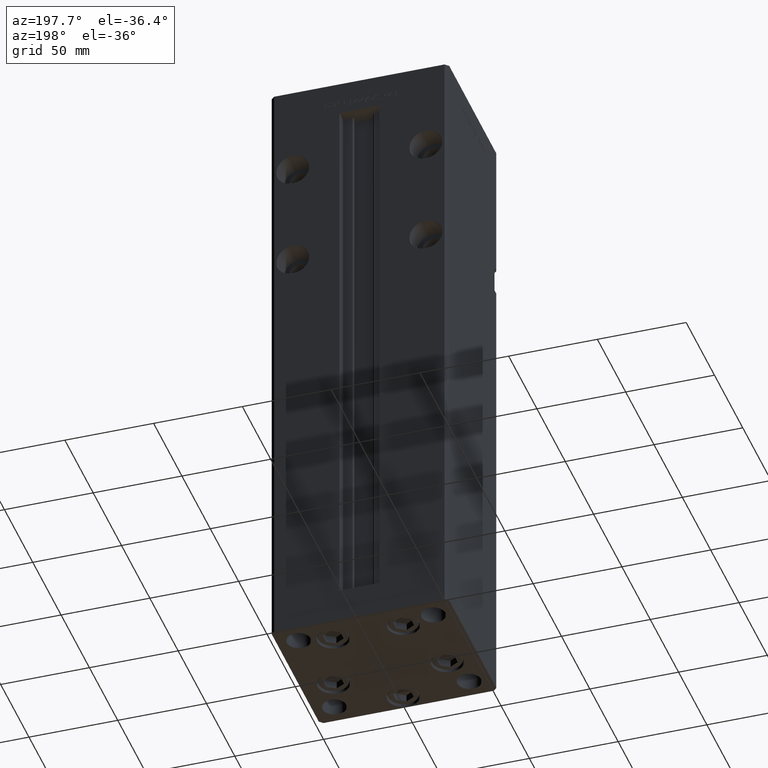
[diagram: clean part render]
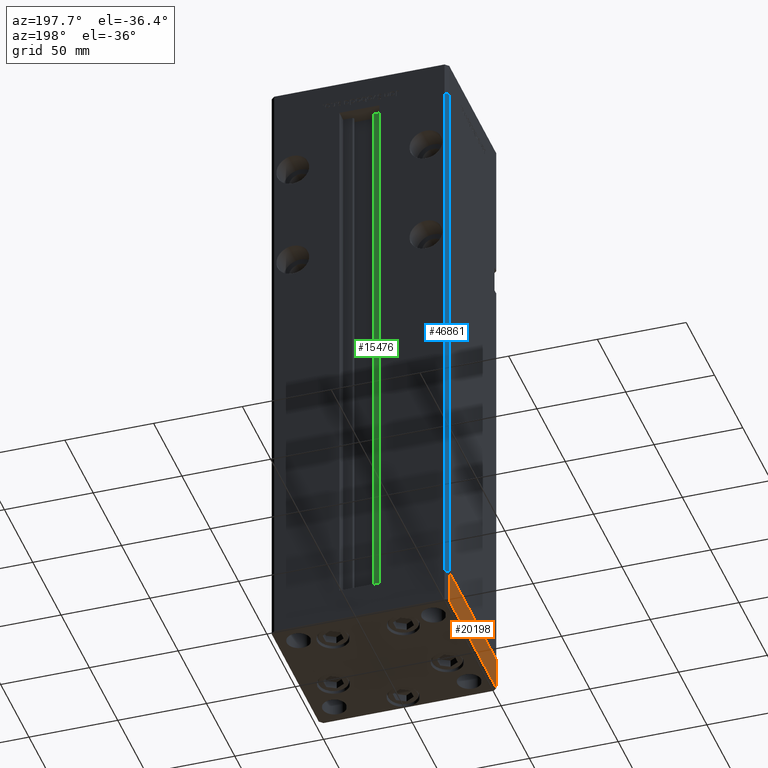
[diagram: same view with three faces highlighted in distinct colors, each labeled with its STEP entity id]
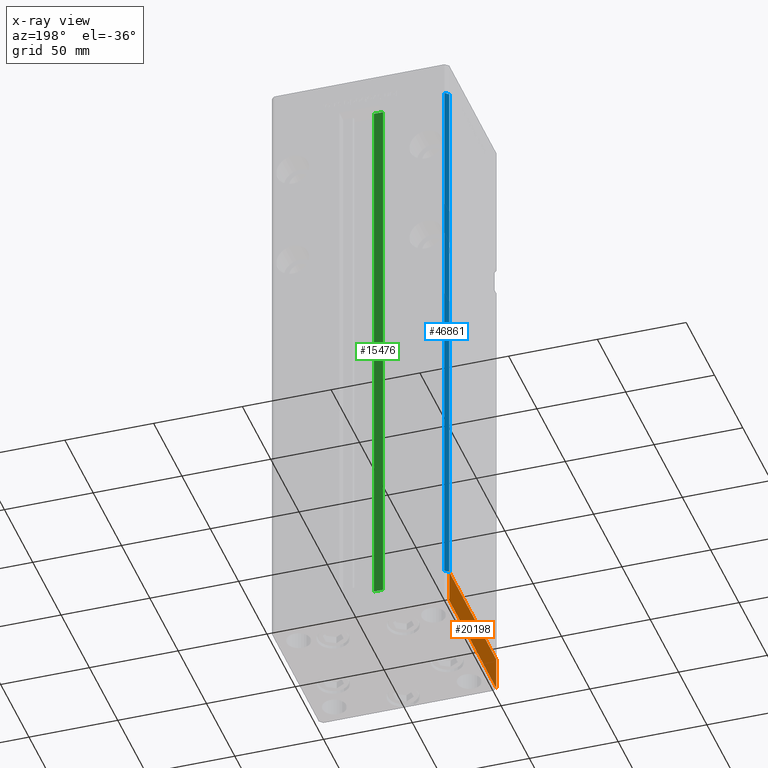
[diagram: x-ray of the same camera — body ghosted, the three highlighted faces saturated]
A machine part, auxiliary view with three faces highlighted in distinct colors.
The next image is the same camera in x-ray (body ghosted, the three faces saturated) — at least one of them is partly hidden behind the body in this view.
Their STEP definitions:

[orange] entity #20198 — the highlighted planar face has unit normal (-1, -0, 0).
#145 = EDGE_CURVE ( 'NONE', #15688, #26619, #16801, .T. ) ;
#3100 = DIRECTION ( 'NONE',  ( 0.000000000000000000, 0.000000000000000000, 1.000000000000000000 ) ) ;
#4010 = ORIENTED_EDGE ( 'NONE', *, *, #19720, .F. ) ;
#5222 = LINE ( 'NONE', #18073, #23264 ) ;
#8373 = VERTEX_POINT ( 'NONE', #43540 ) ;
#8897 = DIRECTION ( 'NONE',  ( -1.003213576468515193E-15, 1.000000000000000000, 0.000000000000000000 ) ) ;
#12321 = CARTESIAN_POINT ( 'NONE',  ( 50.00000000000000000, -41.49999999999999289, 0.000000000000000000 ) ) ;
#13076 = FACE_OUTER_BOUND ( 'NONE', #15206, .T. ) ;
#13186 = CARTESIAN_POINT ( 'NONE',  ( 50.00000000000000000, -41.49999999999999289, -19.00000000000000000 ) ) ;
#13339 = DIRECTION ( 'NONE',  ( 1.000000000000000000, 1.003213576468515193E-15, -0.000000000000000000 ) ) ;
#13480 = VERTEX_POINT ( 'NONE', #32862 ) ;
#14361 = CARTESIAN_POINT ( 'NONE',  ( 49.99999999999992184, 41.49999999999998579, -19.00000000000000000 ) ) ;
#14564 = ORIENTED_EDGE ( 'NONE', *, *, #145, .F. ) ;
#15206 = EDGE_LOOP ( 'NONE', ( #4010, #14564, #39139, #30364 ) ) ;
#15688 = VERTEX_POINT ( 'NONE', #46784 ) ;
#16801 = LINE ( 'NONE', #50404, #30138 ) ;
#18073 = CARTESIAN_POINT ( 'NONE',  ( 50.00000000000000000, -41.49999999999999289, 0.000000000000000000 ) ) ;
#19720 = EDGE_CURVE ( 'NONE', #26619, #8373, #5222, .T. ) ;
#20198 = ADVANCED_FACE ( 'NONE', ( #13076 ), #37005, .T. ) ;
#23264 = VECTOR ( 'NONE', #25630, 1000.000000000000000 ) ;
#24371 = DIRECTION ( 'NONE',  ( -1.003213576468515193E-15, 1.000000000000000000, 0.000000000000000000 ) ) ;
#25441 = CARTESIAN_POINT ( 'NONE',  ( 50.00000000000000000, -41.49999999999999289, -19.00000000000000000 ) ) ;
#25630 = DIRECTION ( 'NONE',  ( -1.003213576468515193E-15, 1.000000000000000000, 0.000000000000000000 ) ) ;
#26619 = VERTEX_POINT ( 'NONE', #12321 ) ;
#30138 = VECTOR ( 'NONE', #38030, 1000.000000000000000 ) ;
#30364 = ORIENTED_EDGE ( 'NONE', *, *, #36672, .T. ) ;
#31870 = AXIS2_PLACEMENT_3D ( 'NONE', #25441, #13339, #24371 ) ;
#32862 = CARTESIAN_POINT ( 'NONE',  ( 49.99999999999992184, 41.49999999999998579, -19.00000000000000000 ) ) ;
#36672 = EDGE_CURVE ( 'NONE', #13480, #8373, #52012, .T. ) ;
#36758 = EDGE_CURVE ( 'NONE', #15688, #13480, #45725, .T. ) ;
#37005 = PLANE ( 'NONE',  #31870 ) ;
#38030 = DIRECTION ( 'NONE',  ( 0.000000000000000000, 0.000000000000000000, 1.000000000000000000 ) ) ;
#39139 = ORIENTED_EDGE ( 'NONE', *, *, #36758, .T. ) ;
#41690 = VECTOR ( 'NONE', #8897, 1000.000000000000000 ) ;
#43540 = CARTESIAN_POINT ( 'NONE',  ( 49.99999999999992184, 41.49999999999998579, 0.000000000000000000 ) ) ;
#45725 = LINE ( 'NONE', #13186, #41690 ) ;
#46784 = CARTESIAN_POINT ( 'NONE',  ( 50.00000000000000000, -41.49999999999999289, -19.00000000000000000 ) ) ;
#50277 = VECTOR ( 'NONE', #3100, 1000.000000000000000 ) ;
#50404 = CARTESIAN_POINT ( 'NONE',  ( 50.00000000000000000, -41.49999999999999289, -19.00000000000000000 ) ) ;
#52012 = LINE ( 'NONE', #14361, #50277 ) ;

[blue] entity #46861 — the highlighted planar face has unit normal (0.7071, -0.7071, 0).
#276 = VERTEX_POINT ( 'NONE', #37684 ) ;
#585 = FACE_OUTER_BOUND ( 'NONE', #41440, .T. ) ;
#3048 = VECTOR ( 'NONE', #20707, 1000.000000000000000 ) ;
#3909 = EDGE_CURVE ( 'NONE', #8201, #52677, #32912, .T. ) ;
#4813 = ORIENTED_EDGE ( 'NONE', *, *, #15370, .T. ) ;
#4896 = DIRECTION ( 'NONE',  ( 0.7071067811865463515, -0.7071067811865487940, 0.000000000000000000 ) ) ;
#8201 = VERTEX_POINT ( 'NONE', #44172 ) ;
#12853 = ORIENTED_EDGE ( 'NONE', *, *, #13050, .T. ) ;
#13050 = EDGE_CURVE ( 'NONE', #8201, #276, #52474, .T. ) ;
#13914 = CARTESIAN_POINT ( 'NONE',  ( -50.00000000000001421, 41.49999999999999289, 318.5000000000000000 ) ) ;
#14538 = AXIS2_PLACEMENT_3D ( 'NONE', #22032, #4896, #37398 ) ;
#15370 = EDGE_CURVE ( 'NONE', #276, #15436, #17348, .T. ) ;
#15436 = VERTEX_POINT ( 'NONE', #39047 ) ;
#15517 = VECTOR ( 'NONE', #46190, 1000.000000000000000 ) ;
#17348 = LINE ( 'NONE', #49644, #44316 ) ;
#17674 = CARTESIAN_POINT ( 'NONE',  ( -50.00000000000001421, 41.49999999999999289, 318.5000000000000000 ) ) ;
#19036 = EDGE_CURVE ( 'NONE', #52677, #15436, #50751, .T. ) ;
#20706 = ORIENTED_EDGE ( 'NONE', *, *, #19036, .F. ) ;
#20707 = DIRECTION ( 'NONE',  ( -0.000000000000000000, -0.000000000000000000, -1.000000000000000000 ) ) ;
#22032 = CARTESIAN_POINT ( 'NONE',  ( -48.00000000000000711, 43.50000000000000000, 318.5000000000000000 ) ) ;
#23353 = VECTOR ( 'NONE', #45293, 1000.000000000000000 ) ;
#28667 = DIRECTION ( 'NONE',  ( -0.7071067811865487940, -0.7071067811865463515, 0.000000000000000000 ) ) ;
#28896 = CARTESIAN_POINT ( 'NONE',  ( -48.00000000000000711, 43.50000000000000000, 318.5000000000000000 ) ) ;
#30383 = ORIENTED_EDGE ( 'NONE', *, *, #3909, .F. ) ;
#32912 = LINE ( 'NONE', #28896, #23353 ) ;
#37398 = DIRECTION ( 'NONE',  ( 0.7071067811865487940, 0.7071067811865463515, 0.000000000000000000 ) ) ;
#37684 = CARTESIAN_POINT ( 'NONE',  ( -48.00000000000000711, 43.50000000000000000, 0.000000000000000000 ) ) ;
#39047 = CARTESIAN_POINT ( 'NONE',  ( -50.00000000000001421, 41.49999999999999289, 0.000000000000000000 ) ) ;
#41437 = PLANE ( 'NONE',  #14538 ) ;
#41440 = EDGE_LOOP ( 'NONE', ( #4813, #20706, #30383, #12853 ) ) ;
#44172 = CARTESIAN_POINT ( 'NONE',  ( -48.00000000000000711, 43.50000000000000000, 318.5000000000000000 ) ) ;
#44316 = VECTOR ( 'NONE', #28667, 1000.000000000000000 ) ;
#45293 = DIRECTION ( 'NONE',  ( -0.7071067811865487940, -0.7071067811865463515, 0.000000000000000000 ) ) ;
#46190 = DIRECTION ( 'NONE',  ( -0.000000000000000000, -0.000000000000000000, -1.000000000000000000 ) ) ;
#46861 = ADVANCED_FACE ( 'NONE', ( #585 ), #41437, .F. ) ;
#49225 = CARTESIAN_POINT ( 'NONE',  ( -48.00000000000000711, 43.50000000000000000, 318.5000000000000000 ) ) ;
#49644 = CARTESIAN_POINT ( 'NONE',  ( -48.00000000000000711, 43.50000000000000000, 0.000000000000000000 ) ) ;
#50751 = LINE ( 'NONE', #13914, #15517 ) ;
#52474 = LINE ( 'NONE', #49225, #3048 ) ;
#52677 = VERTEX_POINT ( 'NONE', #17674 ) ;

[green] entity #15476 — the highlighted planar face has unit normal (0, -1, 0).
#549 = DIRECTION ( 'NONE',  ( 1.000000000000000000, -0.000000000000000000, -0.000000000000000000 ) ) ;
#1061 = EDGE_LOOP ( 'NONE', ( #8815, #43316, #10767, #5644 ) ) ;
#4863 = CARTESIAN_POINT ( 'NONE',  ( -6.183333333333996151, 37.00000000000000000, 0.000000000000000000 ) ) ;
#5644 = ORIENTED_EDGE ( 'NONE', *, *, #11131, .F. ) ;
#6105 = CARTESIAN_POINT ( 'NONE',  ( -6.183333333333996151, 37.00000000000000000, 318.5000000000000000 ) ) ;
#7835 = VERTEX_POINT ( 'NONE', #13864 ) ;
#8590 = VERTEX_POINT ( 'NONE', #6105 ) ;
#8670 = CARTESIAN_POINT ( 'NONE',  ( -6.183333333333996151, 37.00000000000000000, 0.000000000000000000 ) ) ;
#8815 = ORIENTED_EDGE ( 'NONE', *, *, #14781, .F. ) ;
#10679 = VECTOR ( 'NONE', #36896, 1000.000000000000000 ) ;
#10767 = ORIENTED_EDGE ( 'NONE', *, *, #28718, .T. ) ;
#11131 = EDGE_CURVE ( 'NONE', #8590, #7835, #52454, .T. ) ;
#12405 = DIRECTION ( 'NONE',  ( 0.000000000000000000, -1.000000000000000000, -0.000000000000000000 ) ) ;
#13864 = CARTESIAN_POINT ( 'NONE',  ( -11.24999999999999645, 37.00000000000000000, 318.5000000000000000 ) ) ;
#14781 = EDGE_CURVE ( 'NONE', #45707, #8590, #14786, .T. ) ;
#14786 = LINE ( 'NONE', #43568, #43387 ) ;
#15476 = ADVANCED_FACE ( 'NONE', ( #28016 ), #24766, .F. ) ;
#16161 = DIRECTION ( 'NONE',  ( 0.000000000000000000, 0.000000000000000000, -1.000000000000000000 ) ) ;
#19642 = DIRECTION ( 'NONE',  ( -1.000000000000000000, 0.000000000000000000, 0.000000000000000000 ) ) ;
#19672 = CARTESIAN_POINT ( 'NONE',  ( -6.183333333333996151, 37.00000000000000000, 0.000000000000000000 ) ) ;
#22291 = DIRECTION ( 'NONE',  ( -0.000000000000000000, -0.000000000000000000, 1.000000000000000000 ) ) ;
#24192 = CARTESIAN_POINT ( 'NONE',  ( 0.000000000000000000, 37.00000000000000000, 318.5000000000000000 ) ) ;
#24766 = PLANE ( 'NONE',  #35712 ) ;
#27789 = CARTESIAN_POINT ( 'NONE',  ( -11.24999999999999645, 37.00000000000000000, 0.000000000000000000 ) ) ;
#28016 = FACE_OUTER_BOUND ( 'NONE', #1061, .T. ) ;
#28718 = EDGE_CURVE ( 'NONE', #33743, #7835, #40938, .T. ) ;
#28834 = CARTESIAN_POINT ( 'NONE',  ( -11.24999999999999645, 37.00000000000000000, 0.000000000000000000 ) ) ;
#33743 = VERTEX_POINT ( 'NONE', #27789 ) ;
#35712 = AXIS2_PLACEMENT_3D ( 'NONE', #19672, #12405, #16161 ) ;
#35813 = VECTOR ( 'NONE', #549, 1000.000000000000000 ) ;
#36424 = VECTOR ( 'NONE', #19642, 1000.000000000000000 ) ;
#36896 = DIRECTION ( 'NONE',  ( -0.000000000000000000, -0.000000000000000000, 1.000000000000000000 ) ) ;
#40824 = EDGE_CURVE ( 'NONE', #33743, #45707, #46222, .T. ) ;
#40938 = LINE ( 'NONE', #28834, #10679 ) ;
#43316 = ORIENTED_EDGE ( 'NONE', *, *, #40824, .F. ) ;
#43387 = VECTOR ( 'NONE', #22291, 1000.000000000000000 ) ;
#43568 = CARTESIAN_POINT ( 'NONE',  ( -6.183333333333996151, 37.00000000000000000, 0.000000000000000000 ) ) ;
#45707 = VERTEX_POINT ( 'NONE', #8670 ) ;
#46222 = LINE ( 'NONE', #4863, #35813 ) ;
#52454 = LINE ( 'NONE', #24192, #36424 ) ;